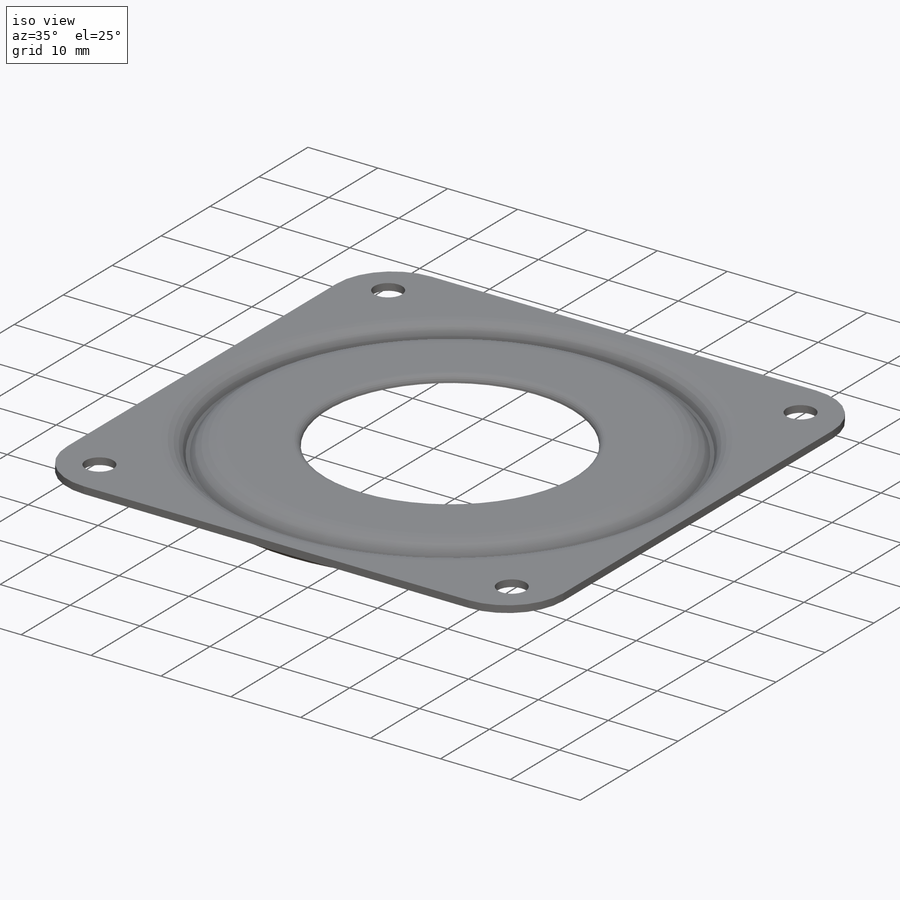
[diagram: iso view]
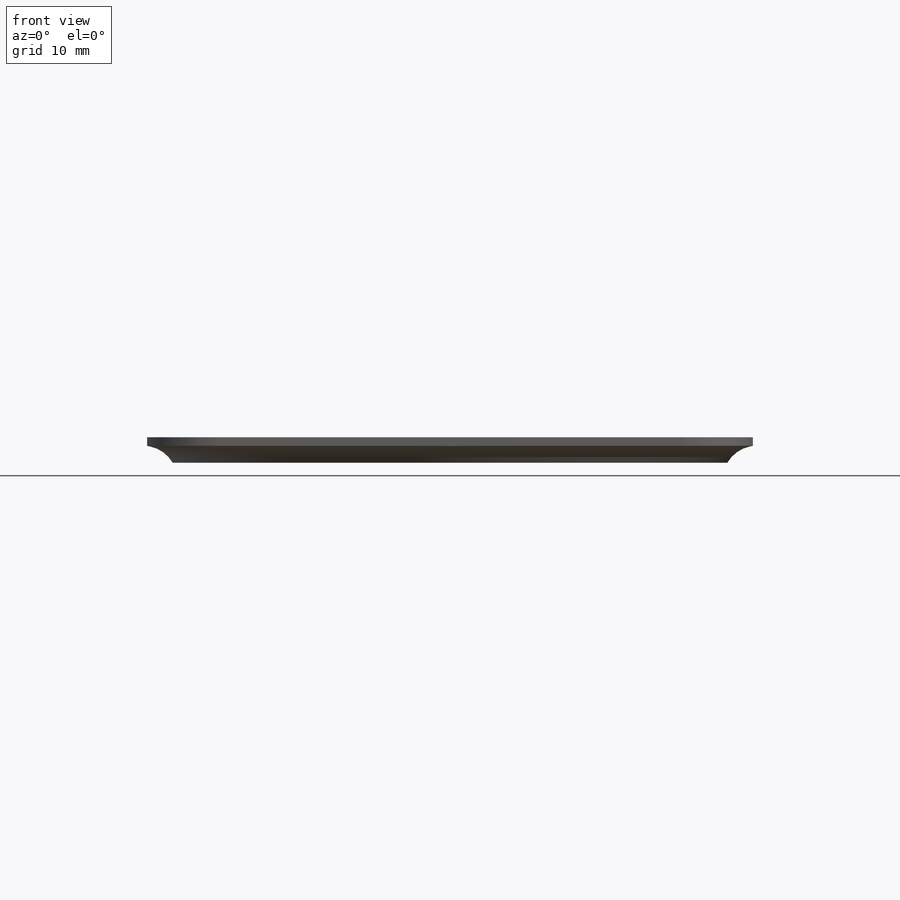
[diagram: front view]
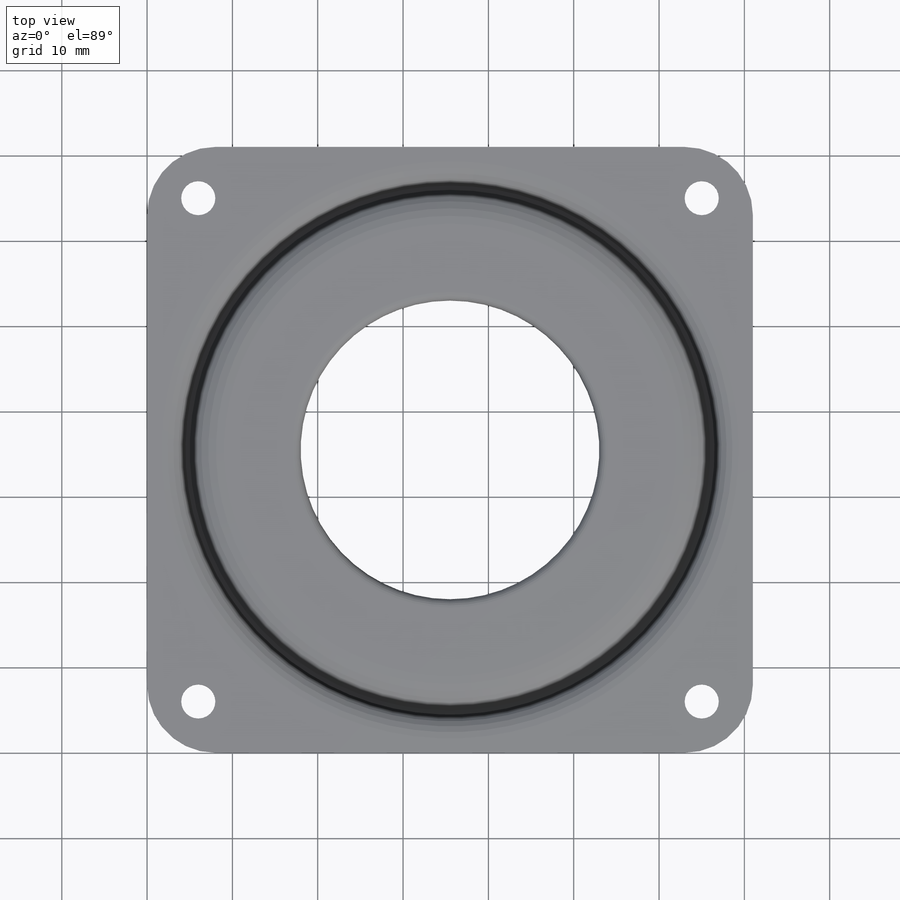
[diagram: top view]
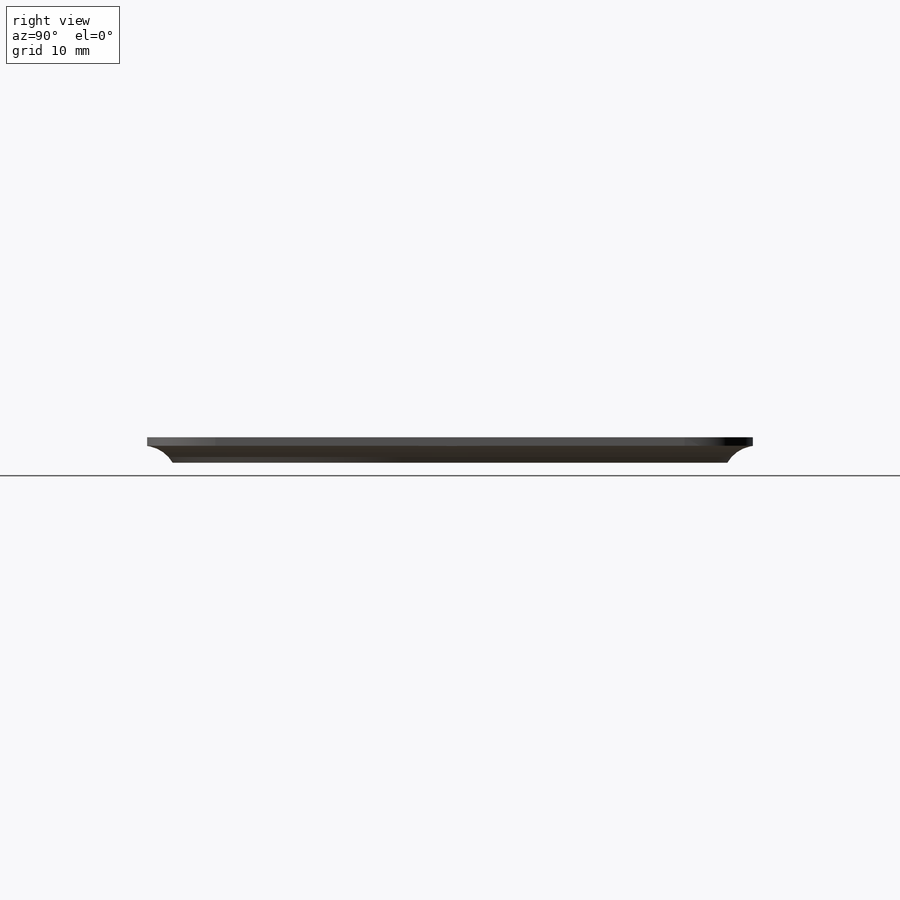
[diagram: right view]
SOLIDWORKS PART (.sldprt)
format: sldprt  version: not decoded by parser v0  size: 349,184 bytes
history: native  units: mm
features: fillet x6, sketch x3, cut_extrude x2, material x1, extrude x1 (+12 scaffold rows collapsed)
feature tree (25):
  scaffold x12  (default folders/planes/origin — collapsed)
  material  "Material <not specified>"
  sketch  "Sketch1"  dims[c1.D3=4.0mm c1.D10=35.0mm c1.D15=4.0mm c1.D1=71.0mm c1.D2=71.0mm c1.D4=6.0mm c1.D5=6.0mm c1.D8=35.5mm c1.D9=35.5mm c1.D11=6.0mm c1.D12=6.0mm c1.D13=6.0mm c1.D14=6.0mm c2.D15=59.0mm c2.D6=2.0 c2.D7=2.0]
  extrude  "Boss-Extrude1"  Depth=3mm
  fillet  "Fillet2"  Radius=8mm
  sketch  "Sketch2"  dims[D1=62.0mm D2=61.0mm]
  cut_extrude  "Cut-Extrude1"  Depth=2mm
  fillet  "Fillet3"  Radius=5mm
  fillet  "Fillet4"  Radius=3mm
  fillet  "Fillet5"  Radius=1mm
  sketch  "Sketch4"  dims[D1=65.0mm D2=58.0mm]
  cut_extrude  "Cut-Extrude4"  Depth=2mm
  fillet  "Fillet8"  Radius=4mm
  fillet  "Fillet9"  Radius=4mm
decode coverage: 12 of 12 modeling features carry decoded parameters
note: suppression state not decoded; provenance and decode notes live in map.json
